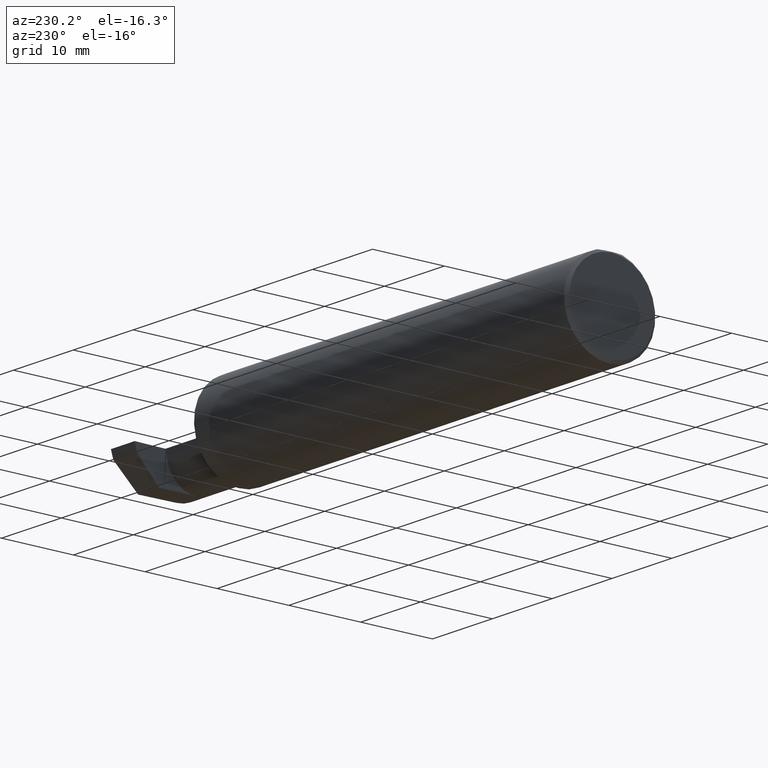
[diagram: clean part render]
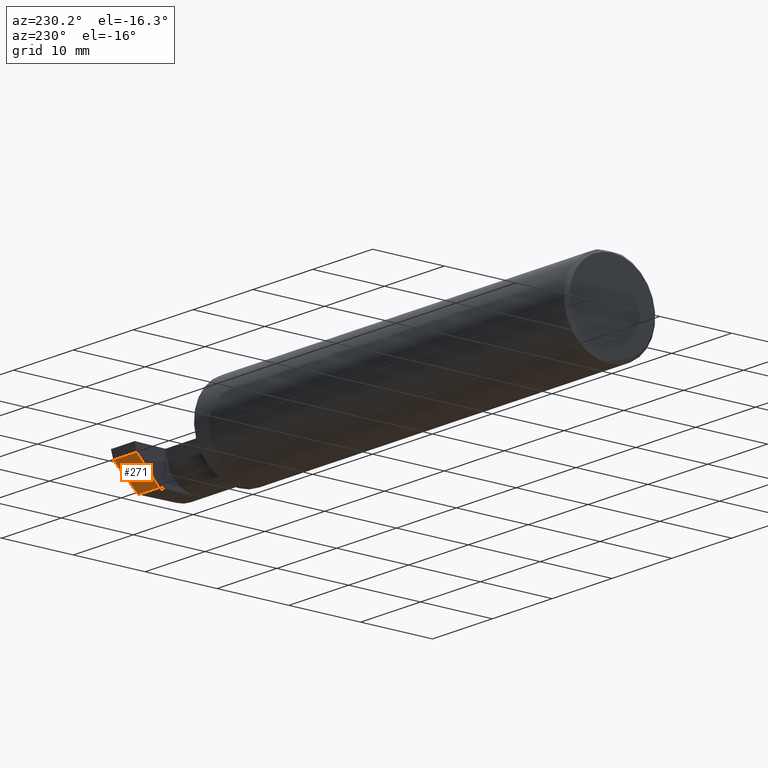
[diagram: same view with one face highlighted and labeled with its STEP entity id]
A machine part, auxiliary view. The second image highlights one B-rep face of the part: STEP entity #271.
In plain terms, the highlighted planar face has unit normal (0, -0.7071, 0.7071).
Its self-contained STEP definition (entity closure, byte-faithful):
#7 = CARTESIAN_POINT ( 'NONE',  ( 2.825000000000000178, 0.2348243371481683328, -0.04599999999999999922 ) ) ;
#30 = CARTESIAN_POINT ( 'NONE',  ( 2.845037492458067696, 0.2348243371481683328, -0.04599999999999999922 ) ) ;
#34 = VERTEX_POINT ( 'NONE', #42 ) ;
#38 = DIRECTION ( 'NONE',  ( 1.000000000000000000, 0.000000000000000000, 0.000000000000000000 ) ) ;
#42 = CARTESIAN_POINT ( 'NONE',  ( 2.990479469570817006, 0.1058243371481679268, -0.1749999999999999889 ) ) ;
#49 = CARTESIAN_POINT ( 'NONE',  ( 2.854047045968829632, 0.1058243371481679407, -0.1749999999999999334 ) ) ;
#54 = CARTESIAN_POINT ( 'NONE',  ( 3.000000000000000444, 0.1058243371481678713, -0.1750000000000000167 ) ) ;
#81 = EDGE_CURVE ( 'NONE', #112, #34, #819, .T. ) ;
#112 = VERTEX_POINT ( 'NONE', #49 ) ;
#118 = DIRECTION ( 'NONE',  ( -0.04932528479609450678, 0.7062460676987120101, 0.7062460676987096786 ) ) ;
#150 = VECTOR ( 'NONE', #118, 39.37007874015748143 ) ;
#169 = ORIENTED_EDGE ( 'NONE', *, *, #639, .T. ) ;
#223 = VERTEX_POINT ( 'NONE', #579 ) ;
#268 = DIRECTION ( 'NONE',  ( -0.04317993108637931121, -0.7064472710512011977, -0.7064472710511988662 ) ) ;
#271 = ADVANCED_FACE ( 'NONE', ( #334 ), #587, .F. ) ;
#290 = VECTOR ( 'NONE', #38, 39.37007874015748143 ) ;
#334 = FACE_OUTER_BOUND ( 'NONE', #346, .T. ) ;
#346 = EDGE_LOOP ( 'NONE', ( #376, #169, #681, #658 ) ) ;
#349 = DIRECTION ( 'NONE',  ( 0.000000000000000000, -0.7071067811865486830, -0.7071067811865463515 ) ) ;
#376 = ORIENTED_EDGE ( 'NONE', *, *, #512, .T. ) ;
#422 = LINE ( 'NONE', #687, #608 ) ;
#502 = DIRECTION ( 'NONE',  ( 1.000000000000000000, -0.000000000000000000, -0.000000000000000000 ) ) ;
#512 = EDGE_CURVE ( 'NONE', #680, #223, #422, .T. ) ;
#516 = LINE ( 'NONE', #703, #625 ) ;
#527 = EDGE_CURVE ( 'NONE', #112, #680, #566, .T. ) ;
#566 = LINE ( 'NONE', #738, #150 ) ;
#579 = CARTESIAN_POINT ( 'NONE',  ( 2.998364291748493393, 0.2348243371481683328, -0.04599999999999999922 ) ) ;
#587 = PLANE ( 'NONE',  #648 ) ;
#608 = VECTOR ( 'NONE', #502, 39.37007874015748143 ) ;
#625 = VECTOR ( 'NONE', #268, 39.37007874015748854 ) ;
#639 = EDGE_CURVE ( 'NONE', #223, #34, #516, .T. ) ;
#648 = AXIS2_PLACEMENT_3D ( 'NONE', #7, #725, #349 ) ;
#658 = ORIENTED_EDGE ( 'NONE', *, *, #527, .T. ) ;
#680 = VERTEX_POINT ( 'NONE', #30 ) ;
#681 = ORIENTED_EDGE ( 'NONE', *, *, #81, .F. ) ;
#687 = CARTESIAN_POINT ( 'NONE',  ( 2.825000000000000178, 0.2348243371481683328, -0.04599999999999999922 ) ) ;
#703 = CARTESIAN_POINT ( 'NONE',  ( 2.998041052908566595, 0.2295359730721147906, -0.05128836407605352060 ) ) ;
#725 = DIRECTION ( 'NONE',  ( 0.000000000000000000, -0.7071067811865463515, 0.7071067811865486830 ) ) ;
#738 = CARTESIAN_POINT ( 'NONE',  ( 2.844988741565123824, 0.2355223589960123431, -0.04530197815215598889 ) ) ;
#819 = LINE ( 'NONE', #54, #290 ) ;